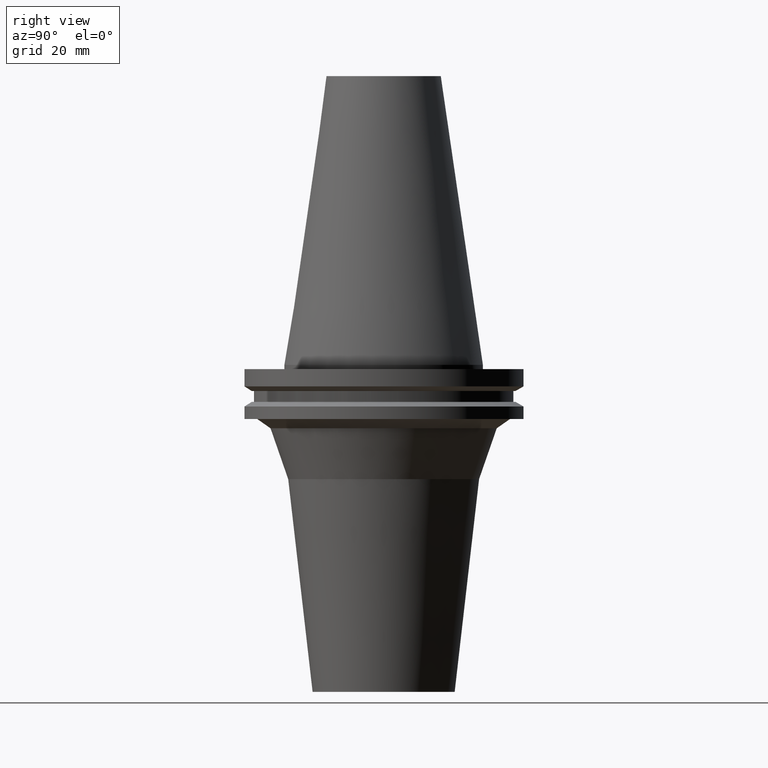
[diagram: clean part render]
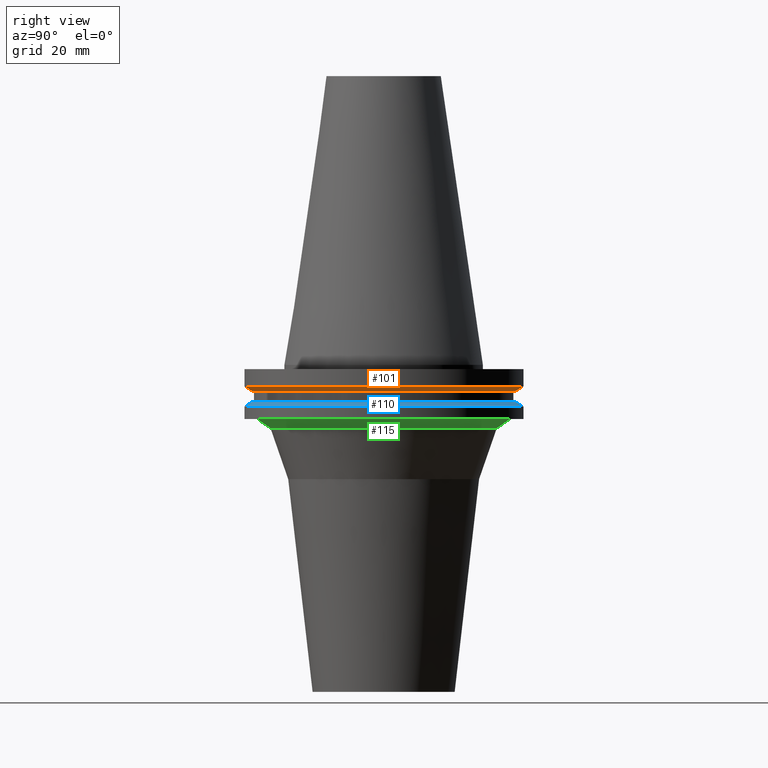
[diagram: same view with three faces highlighted in distinct colors, each labeled with its STEP entity id]
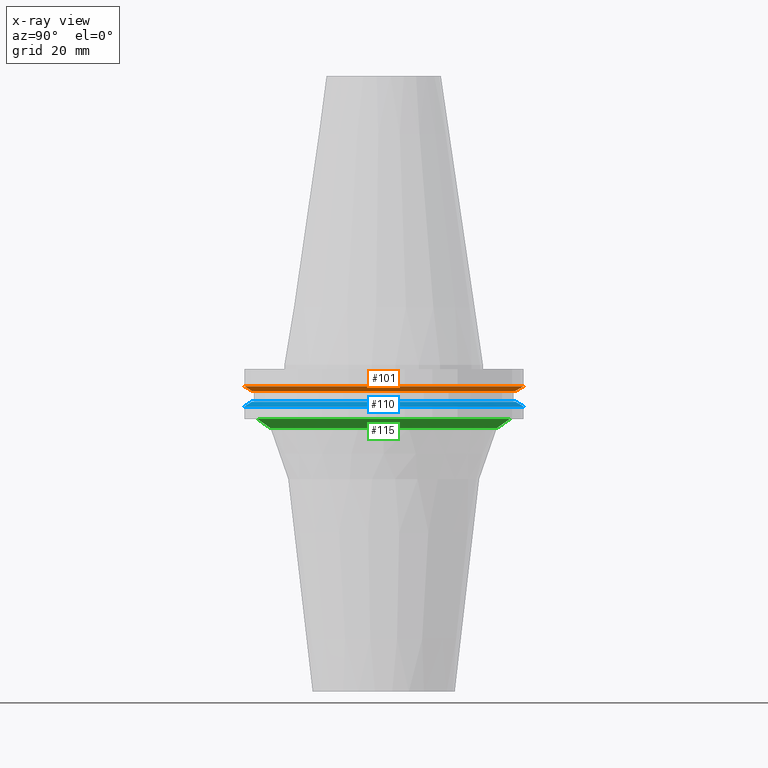
[diagram: x-ray of the same camera — body ghosted, the three highlighted faces saturated]
A machine part, right view with three faces highlighted in distinct colors.
The next image is the same camera in x-ray (body ghosted, the three faces saturated) — at least one of them is partly hidden behind the body in this view.
Their STEP definitions:

[orange] entity #101 — the highlighted conical surface has half-angle 60 deg.
#61=EDGE_CURVE('Unnamed[1]',#161,#161,#162,.T.);
#81=EDGE_CURVE('Unnamed[1]',#192,#192,#193,.T.);
#101=ADVANCED_FACE('Unnamed[1]',(#221,#222),#223,.T.);
#161=VERTEX_POINT('',#296);
#162=CIRCLE('',#297,46.43053755);
#192=VERTEX_POINT('',#335);
#193=CIRCLE('',#336,49.2125);
#221=FACE_BOUND('',#371,.T.);
#222=FACE_BOUND('',#372,.T.);
#223=CONICAL_SURFACE('',#373,47.821518775,1.04719755103024);
#296=CARTESIAN_POINT('',(5.63337527607782E-016,46.43053755,-9.2));
#297=AXIS2_PLACEMENT_3D('',#451,#452,#453);
#335=CARTESIAN_POINT('',(4.64988177918915E-016,49.2125,-7.59383323));
#336=AXIS2_PLACEMENT_3D('',#486,#487,#488);
#371=EDGE_LOOP('',(#515));
#372=EDGE_LOOP('',(#516));
#373=AXIS2_PLACEMENT_3D('',#517,#518,#519);
#451=CARTESIAN_POINT('',(5.63337527607782E-016,-9.37378219215522E-015,-9.19999999999999));
#452=DIRECTION('',(6.12323399573677E-017,-1.22619910848867E-016,-1.0));
#453=DIRECTION('',(2.68115133587094E-033,1.0,-1.22619910848867E-016));
#486=CARTESIAN_POINT('',(4.64988177918915E-016,-9.17683416600941E-015,-7.59383322999999));
#487=DIRECTION('',(6.12323399573677E-017,-1.22619910848867E-016,-1.0));
#488=DIRECTION('',(2.68115133587094E-033,1.0,-1.22619910848867E-016));
#515=ORIENTED_EDGE('',*,*,#61,.F.);
#516=ORIENTED_EDGE('',*,*,#81,.T.);
#517=CARTESIAN_POINT('',(5.14162852763349E-016,-9.27530817908232E-015,-8.396916615));
#518=DIRECTION('',(-6.12323399573677E-017,1.22619910848867E-016,1.0));
#519=DIRECTION('',(2.68115133587094E-033,1.0,-1.22619910848867E-016));

[blue] entity #110 — the highlighted conical surface has half-angle 60 deg.
#110=ADVANCED_FACE('Unnamed[1]',(#235,#236),#237,.T.);
#112=EDGE_CURVE('Unnamed[1]',#239,#239,#240,.T.);
#135=EDGE_CURVE('Unnamed[1]',#276,#276,#277,.T.);
#235=FACE_BOUND('',#388,.T.);
#236=FACE_BOUND('',#389,.T.);
#237=CONICAL_SURFACE('',#390,47.821518775,1.04719755103023);
#239=VERTEX_POINT('',#393);
#240=CIRCLE('',#394,49.2125);
#276=VERTEX_POINT('',#439);
#277=CIRCLE('',#440,46.43053755);
#388=EDGE_LOOP('',(#532));
#389=EDGE_LOOP('',(#533));
#390=AXIS2_PLACEMENT_3D('',#534,#535,#536);
#393=CARTESIAN_POINT('',(8.96819062732941E-016,49.2125,-14.64616677));
#394=AXIS2_PLACEMENT_3D('',#537,#538,#539);
#439=CARTESIAN_POINT('',(7.98469713044073E-016,46.43053755,-13.04));
#440=AXIS2_PLACEMENT_3D('',#579,#580,#581);
#532=ORIENTED_EDGE('',*,*,#112,.F.);
#533=ORIENTED_EDGE('',*,*,#135,.T.);
#534=CARTESIAN_POINT('',(8.47644387888507E-016,-9.94311666288778E-015,-13.843083385));
#535=DIRECTION('',(6.12323399573677E-017,-1.22619910848867E-016,-1.0));
#536=DIRECTION('',(2.68115133587094E-033,1.0,-1.22619910848867E-016));
#537=CARTESIAN_POINT('',(8.96819062732941E-016,-1.00415906759607E-014,-14.64616677));
#538=DIRECTION('',(6.12323399573676E-017,-1.22619910848867E-016,-1.0));
#539=DIRECTION('',(2.68115133587094E-033,1.0,-1.22619910848867E-016));
#579=CARTESIAN_POINT('',(7.98469713044073E-016,-9.84464264981487E-015,-13.04));
#580=DIRECTION('',(6.12323399573677E-017,-1.22619910848867E-016,-1.0));
#581=DIRECTION('',(2.68115133587094E-033,1.0,-1.22619910848867E-016));

[green] entity #115 — the highlighted conical surface has half-angle 55 deg.
#86=EDGE_CURVE('Unnamed[1]',#198,#198,#199,.T.);
#96=EDGE_CURVE('Unnamed[1]',#214,#214,#215,.T.);
#115=ADVANCED_FACE('Unnamed[1]',(#243,#244),#245,.T.);
#198=VERTEX_POINT('',#342);
#199=CIRCLE('',#343,44.5010376910484);
#214=VERTEX_POINT('',#362);
#215=CIRCLE('',#363,39.8025745871185);
#243=FACE_BOUND('',#398,.T.);
#244=FACE_BOUND('',#399,.T.);
#245=CONICAL_SURFACE('',#400,42.1518061390835,0.959931088596864);
#342=CARTESIAN_POINT('',(1.16647607618785E-015,44.5010376910484,-19.05));
#343=AXIS2_PLACEMENT_3D('',#490,#491,#492);
#362=CARTESIAN_POINT('',(1.36792430753279E-015,39.8025745871185,-22.339899283372));
#363=AXIS2_PLACEMENT_3D('',#508,#509,#510);
#398=EDGE_LOOP('',(#541));
#399=EDGE_LOOP('',(#542));
#400=AXIS2_PLACEMENT_3D('',#543,#544,#545);
#490=CARTESIAN_POINT('',(1.16647607618785E-015,-1.05815883140166E-014,-19.05));
#491=DIRECTION('',(6.12323399573677E-017,-1.22619910848867E-016,-1.0));
#492=DIRECTION('',(2.68115133587094E-033,1.0,-1.22619910848867E-016));
#508=CARTESIAN_POINT('',(1.36792430753279E-015,-1.09849954708454E-014,-22.339899283372));
#509=DIRECTION('',(6.12323399573677E-017,-1.22619910848867E-016,-1.0));
#510=DIRECTION('',(2.68115133587095E-033,1.0,-1.22619910848867E-016));
#541=ORIENTED_EDGE('',*,*,#96,.F.);
#542=ORIENTED_EDGE('',*,*,#86,.T.);
#543=CARTESIAN_POINT('',(1.26720019186032E-015,-1.0783291892431E-014,-20.694949641686));
#544=DIRECTION('',(-6.12323399573677E-017,1.22619910848867E-016,1.0));
#545=DIRECTION('',(2.68115133587095E-033,1.0,-1.22619910848867E-016));